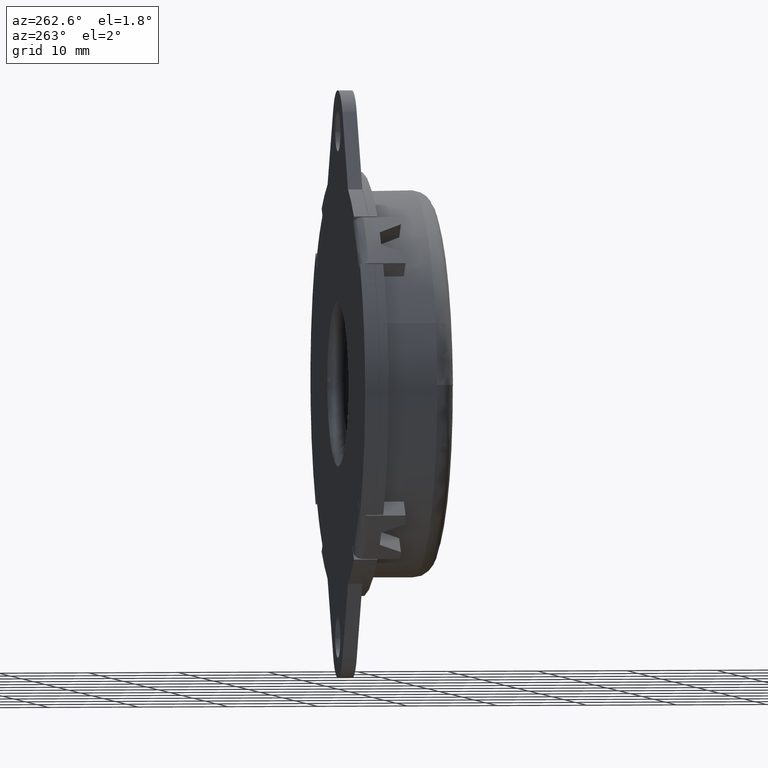
[diagram: clean part render]
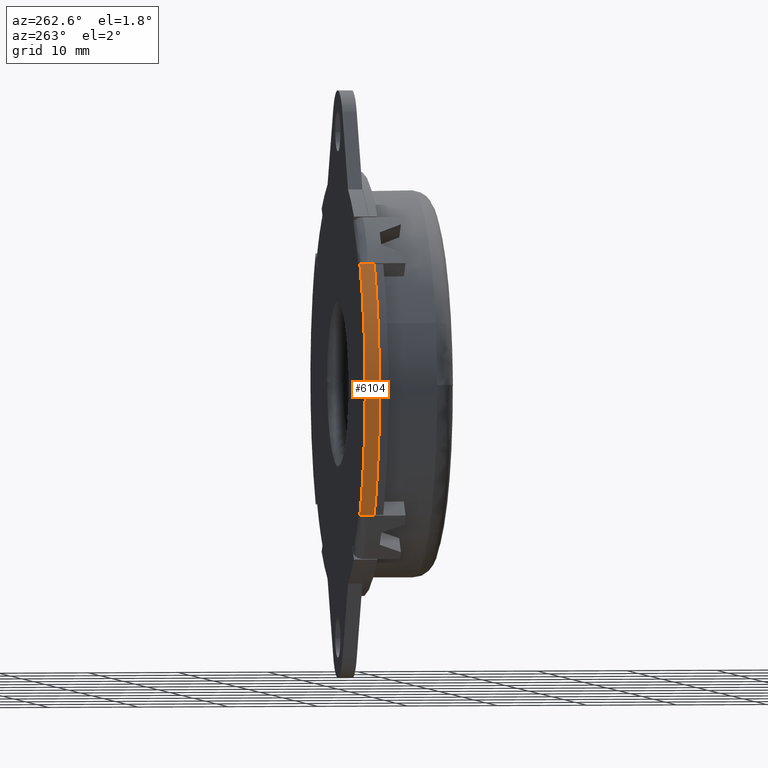
[diagram: same view with one face highlighted and labeled with its STEP entity id]
A machine part, auxiliary view. The second image highlights one B-rep face of the part: STEP entity #6104.
In plain terms, the highlighted face is a freeform B-spline surface patch.
Its self-contained STEP definition (entity closure, byte-faithful):
#3396=CARTESIAN_POINT('',(-18.966455291727549,-1.600000000000155,13.875286435490240));
#3397=VERTEX_POINT('',#3396);
#3403=CARTESIAN_POINT('',(-18.966455291727549,-1.600000000000155,-13.875286435490240));
#3404=VERTEX_POINT('',#3403);
#3405=CARTESIAN_POINT('',(-18.966455291727559,-1.600000000000155,13.875286435490249));
#3406=CARTESIAN_POINT('',(-29.117196202754361,-1.600000000000155,1.734723E-015));
#3407=CARTESIAN_POINT('',(-18.966455291727559,-1.600000000000155,-13.875286435490249));
#3415=(BOUNDED_CURVE()B_SPLINE_CURVE(2,(#3405,#3406,#3407),.UNSPECIFIED.,.F.,.U.)CURVE()GEOMETRIC_REPRESENTATION_ITEM()QUASI_UNIFORM_CURVE()RATIONAL_B_SPLINE_CURVE((1.0,0.807083203903300,1.0))REPRESENTATION_ITEM(''));
#3416=EDGE_CURVE('',#3397,#3404,#3415,.T.);
#5802=CARTESIAN_POINT('',(-18.966455291727549,0.0,-13.875286435490240));
#5803=VERTEX_POINT('',#5802);
#5809=CARTESIAN_POINT('',(-18.966455291727549,0.0,13.875286435490240));
#5810=VERTEX_POINT('',#5809);
#5811=CARTESIAN_POINT('',(-18.966455291727559,0.0,13.875286435490249));
#5812=CARTESIAN_POINT('',(-29.117196202754361,0.0,1.734723E-015));
#5813=CARTESIAN_POINT('',(-18.966455291727559,0.0,-13.875286435490249));
#5821=(BOUNDED_CURVE()B_SPLINE_CURVE(2,(#5811,#5812,#5813),.UNSPECIFIED.,.F.,.U.)CURVE()GEOMETRIC_REPRESENTATION_ITEM()QUASI_UNIFORM_CURVE()RATIONAL_B_SPLINE_CURVE((1.0,0.807083203903300,1.0))REPRESENTATION_ITEM(''));
#5822=EDGE_CURVE('',#5810,#5803,#5821,.T.);
#6059=CARTESIAN_POINT('',(-18.966455291727549,0.0,-13.875286435490240));
#6060=CARTESIAN_POINT('',(-18.966455291727549,-1.600000000000155,-13.875286435490240));
#6061=QUASI_UNIFORM_CURVE('',1,(#6059,#6060),.UNSPECIFIED.,.F.,.U.);
#6062=EDGE_CURVE('',#5803,#3404,#6061,.T.);
#6076=CARTESIAN_POINT('',(-18.966455291727549,0.0,13.875286435490240));
#6077=CARTESIAN_POINT('',(-18.966455291727549,-1.600000000000155,13.875286435490240));
#6078=QUASI_UNIFORM_CURVE('',1,(#6076,#6077),.UNSPECIFIED.,.F.,.U.);
#6079=EDGE_CURVE('',#5810,#3397,#6078,.T.);
#6084=CARTESIAN_POINT('',(-18.596743305418091,-1.640000000000159,14.367015641126979));
#6085=CARTESIAN_POINT('',(-18.596743305418091,0.041000000000004,14.367015641126979));
#6086=CARTESIAN_POINT('',(-30.024783561698946,-1.640000000000159,-0.425501917054557));
#6087=CARTESIAN_POINT('',(-30.024783561698946,0.041000000000004,-0.425501917054557));
#6088=CARTESIAN_POINT('',(-18.182146974931399,-1.640000000000159,-14.888234663048291));
#6089=CARTESIAN_POINT('',(-18.182146974931399,0.041000000000004,-14.888234663048291));
#6097=(BOUNDED_SURFACE()B_SPLINE_SURFACE(1,2,((#6084,#6086,#6088),(#6085,#6087,#6089)),.UNSPECIFIED.,.F.,.F.,.U.)B_SPLINE_SURFACE_WITH_KNOTS((2,2),(3,3),(0.0,1.0),(0.0,32.826269541624733),.UNSPECIFIED.)GEOMETRIC_REPRESENTATION_ITEM()RATIONAL_B_SPLINE_SURFACE(((1.0,0.782608156852414,1.0),(1.0,0.782608156852414,1.0)))REPRESENTATION_ITEM('')SURFACE());
#6098=ORIENTED_EDGE('',*,*,#3416,.F.);
#6099=ORIENTED_EDGE('',*,*,#6079,.F.);
#6100=ORIENTED_EDGE('',*,*,#5822,.T.);
#6101=ORIENTED_EDGE('',*,*,#6062,.T.);
#6102=EDGE_LOOP('',(#6098,#6099,#6100,#6101));
#6103=FACE_OUTER_BOUND('',#6102,.T.);
#6104=ADVANCED_FACE('',(#6103),#6097,.T.);